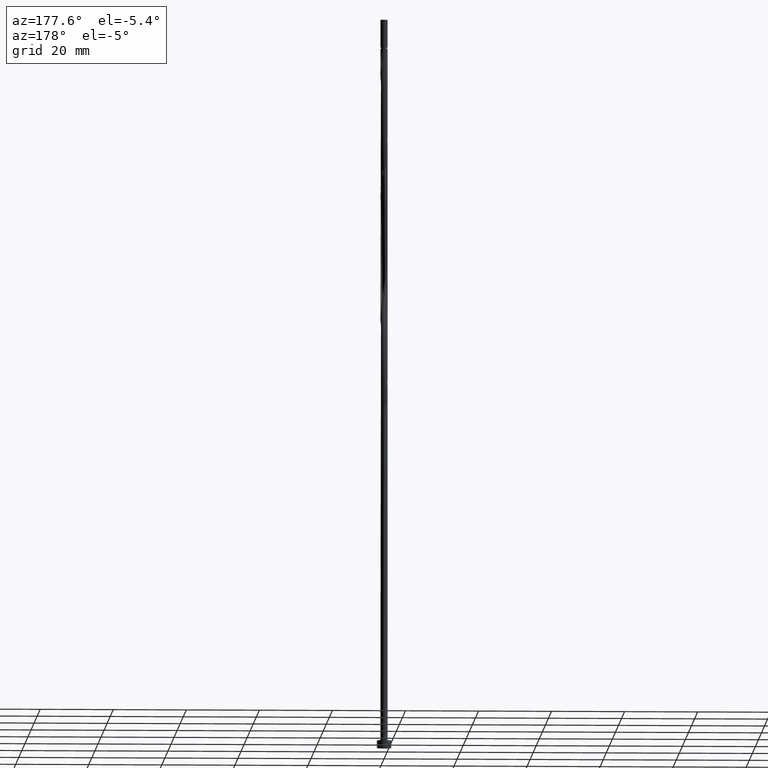
[diagram: clean part render]
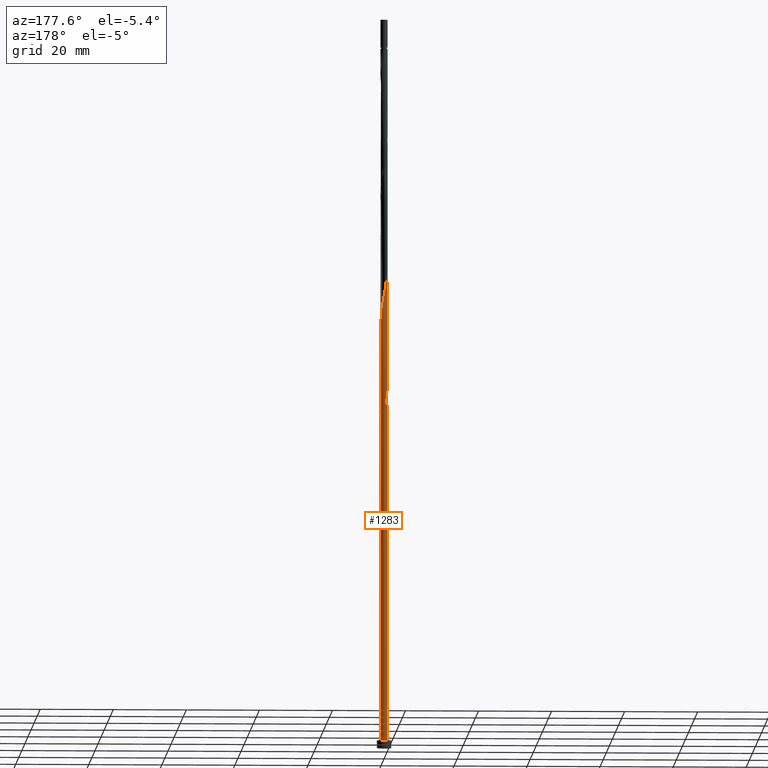
[diagram: same view with one face highlighted and labeled with its STEP entity id]
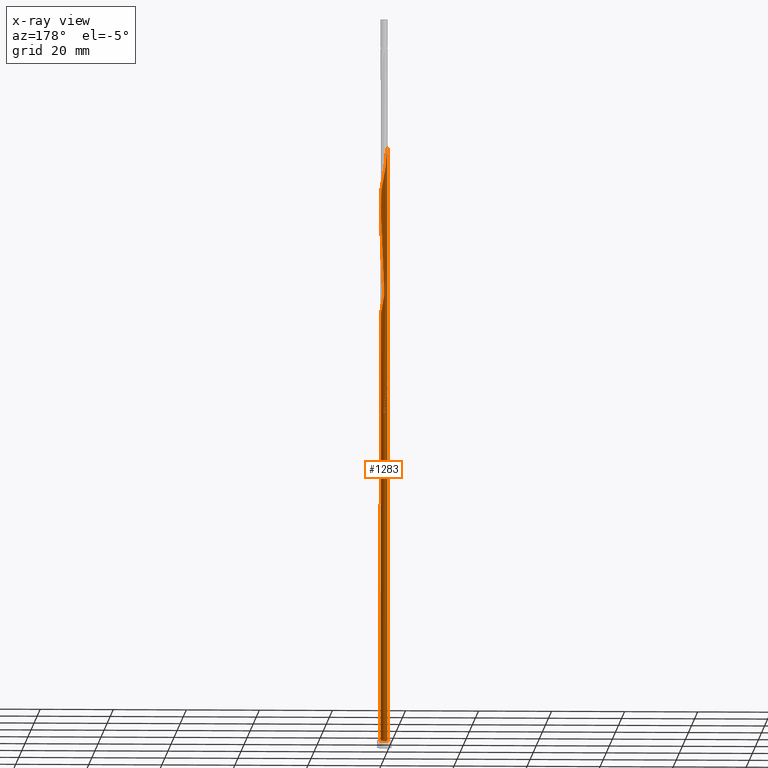
[diagram: x-ray of the same camera — body ghosted, the highlighted face saturated]
A machine part, auxiliary view. The second image highlights one B-rep face of the part: STEP entity #1283.
The next image is the same camera in x-ray: the body ghosted, the highlighted face saturated — about 0% of this face is hidden behind the body in this view.
In plain terms, the highlighted cylindrical surface (bore or boss wall) has radius 1 mm, axis along (-0, -0, -1).
Its self-contained STEP definition (entity closure, byte-faithful):
#9 = CARTESIAN_POINT ( 'NONE',  ( -0.5522521727681136694, -0.8336771183575211186, 137.8695350200416385 ) ) ;
#17 = CARTESIAN_POINT ( 'NONE',  ( 0.06997803978567683492, -1.006198516232634566, 141.3417572422638955 ) ) ;
#26 = CARTESIAN_POINT ( 'NONE',  ( -0.3176631206038585398, 0.9482036394194137685, 94.81397946448610980 ) ) ;
#59 = CARTESIAN_POINT ( 'NONE',  ( 0.000000000000000000, 0.000000000000000000, 2.000000000000000000 ) ) ;
#63 = CARTESIAN_POINT ( 'NONE',  ( -0.06142585173357875683, -0.9981116494354761448, 107.3139794644861240 ) ) ;
#67 = CARTESIAN_POINT ( 'NONE',  ( -1.000000000000001110, 1.147702956047795774E-15, 99.30596836483157119 ) ) ;
#83 = CARTESIAN_POINT ( 'NONE',  ( -0.1989974874213250866, 0.9800000000000013145, 92.03620168670833834 ) ) ;
#92 = CARTESIAN_POINT ( 'NONE',  ( 0.000000000000000000, 0.000000000000000000, 2.000000000000000000 ) ) ;
#99 = CARTESIAN_POINT ( 'NONE',  ( 0.9800000000000015365, 0.1989974874213251421, 117.0362016867083383 ) ) ;
#106 = ORIENTED_EDGE ( 'NONE', *, *, #978, .F. ) ;
#107 = CARTESIAN_POINT ( 'NONE',  ( -0.1989974874213250866, 0.9800000000000013145, 92.03620168670833834 ) ) ;
#116 = ORIENTED_EDGE ( 'NONE', *, *, #920, .F. ) ;
#119 = CARTESIAN_POINT ( 'NONE',  ( -0.1989974874213250866, 0.9800000000000015365, 158.7028683533749529 ) ) ;
#130 = CARTESIAN_POINT ( 'NONE',  ( -0.3176631206038588728, -0.9482036394194134354, 139.2584239089305242 ) ) ;
#133 = CIRCLE ( 'NONE', #491, 1.000000000000000000 ) ;
#140 = CARTESIAN_POINT ( 'NONE',  ( 0.7609717405145327573, -0.6620078475813443442, 145.5084239089305527 ) ) ;
#148 = DIRECTION ( 'NONE',  ( 0.000000000000000000, -0.000000000000000000, -1.000000000000000000 ) ) ;
#165 = CARTESIAN_POINT ( 'NONE',  ( -0.06142585173357854172, 0.9981116494354765889, 93.42509057559722407 ) ) ;
#169 = EDGE_CURVE ( 'NONE', #656, #1226, #937, .T. ) ;
#173 = CARTESIAN_POINT ( 'NONE',  ( -1.000000000000001332, 0.1005037815259229861, 100.8996753060624343 ) ) ;
#187 = DIRECTION ( 'NONE',  ( -0.000000000000000000, -0.000000000000000000, -1.000000000000000000 ) ) ;
#189 = CARTESIAN_POINT ( 'NONE',  ( -0.3176631206038588728, -0.9482036394194134354, 105.9250905755972525 ) ) ;
#193 = DIRECTION ( 'NONE',  ( -0.000000000000000000, -0.000000000000000000, -1.000000000000000000 ) ) ;
#195 = CARTESIAN_POINT ( 'NONE',  ( 0.9482036394194134354, -0.3176631206038589839, 114.2584239089305669 ) ) ;
#205 = CARTESIAN_POINT ( 'NONE',  ( -0.8951029700910997366, -0.4458594766673626419, 135.0917572422639239 ) ) ;
#212 = CARTESIAN_POINT ( 'NONE',  ( 0.06997803978567683492, -1.006198516232634566, 108.0084239089305527 ) ) ;
#219 = CARTESIAN_POINT ( 'NONE',  ( -0.9981116494354761448, 0.06142585173357871520, 132.3139794644861240 ) ) ;
#225 = ORIENTED_EDGE ( 'NONE', *, *, #680, .F. ) ;
#228 = EDGE_CURVE ( 'NONE', #1226, #1056, #806, .T. ) ;
#235 = CARTESIAN_POINT ( 'NONE',  ( 0.8364044564148324090, 0.5637020182777515709, 152.4528683533749813 ) ) ;
#244 = CARTESIAN_POINT ( 'NONE',  ( -0.8336771183575212296, 0.5522521727681136694, 162.8695350200416669 ) ) ;
#250 = CARTESIAN_POINT ( 'NONE',  ( -0.6620078475813443442, -0.7609717405145327573, 137.1750905755972099 ) ) ;
#260 = CARTESIAN_POINT ( 'NONE',  ( -0.9900247826383173910, 0.1928297432528343069, 164.9528683533750097 ) ) ;
#281 = CIRCLE ( 'NONE', #1337, 1.000000000000000000 ) ;
#283 =( BOUNDED_CURVE ( )  B_SPLINE_CURVE ( 2, ( #311, #676, #456, #345, #964, #1464, #709, #820, #1114, #1343, #189, #1095, #63, #212, #1566, #1457, #1481, #1350, #579, #972, #1087, #473, #195, #1603, #684, #329, #99, #1203, #1584, #447, #701, #550, #1321, #1219, #1575, #956, #1103, #1593, #1474, #338, #588, #319, #850, #831, #1211, #1198, #1078, #441, #219, #979, #949, #1336, #205, #693, #566, #250, #9, #596, #130, #1009, #883, #17, #727, #613, #1248, #717, #1130, #140, #877, #1514, #750, #1267, #1369, #1488, #1379, #1387, #761, #235, #1523, #1257, #620, #384, #1148, #1140, #893, #514, #119, #1630, #603, #1237, #1620, #506, #244, #1399, #1019, #260, #489, #355, #740 ),
 .UNSPECIFIED., .F., .T. ) 
 B_SPLINE_CURVE_WITH_KNOTS ( ( 3, 2, 2, 2, 2, 2, 2, 2, 2, 2, 2, 2, 2, 2, 2, 2, 2, 2, 2, 2, 2, 2, 2, 2, 2, 2, 2, 2, 2, 2, 2, 2, 2, 2, 2, 2, 2, 2, 2, 2, 2, 2, 2, 2, 2, 2, 2, 2, 2, 3 ),
 ( 0.05453176698144596851, 0.06250000000000000000, 0.07291666666666662966, 0.08333333333333337034, 0.09375000000000000000, 0.1041666666666666297, 0.1145833333333333703, 0.1250000000000000000, 0.1354166666666666297, 0.1458333333333333703, 0.1562500000000000000, 0.1666666666666666297, 0.1770833333333333703, 0.1875000000000000000, 0.1979166666666666297, 0.2083333333333333703, 0.2187500000000000000, 0.2291666666666666297, 0.2395833333333333703, 0.2500000000000000000, 0.2604166666666666297, 0.2708333333333333703, 0.2812500000000000000, 0.2916666666666666297, 0.3020833333333333703, 0.3125000000000000000, 0.3229166666666666297, 0.3333333333333333703, 0.3437500000000000000, 0.3541666666666666297, 0.3645833333333333703, 0.3750000000000000000, 0.3854166666666666297, 0.3958333333333333703, 0.4062500000000000000, 0.4166666666666666297, 0.4270833333333333703, 0.4375000000000000000, 0.4479166666666666297, 0.4583333333333333703, 0.4687500000000000000, 0.4791666666666666297, 0.4895833333333333703, 0.5000000000000000000, 0.5104166666666667407, 0.5208333333333332593, 0.5312500000000000000, 0.5416666666666667407, 0.5520833333333332593, 0.5545317669814462391 ),
 .UNSPECIFIED. ) 
 CURVE ( )  GEOMETRIC_REPRESENTATION_ITEM ( )  RATIONAL_B_SPLINE_CURVE ( ( 0.9062941362546810264, 0.9031415850403846646, 0.9090909090909604640, 0.9013135103398787207, 0.9090909090909604640, 0.9013135103398787207, 0.9090909090909604640, 0.9013135103398787207, 0.9090909090909604640, 0.9013135103398787207, 0.9090909090909604640, 0.9013135103398787207, 0.9090909090909604640, 0.9013135103398787207, 0.9090909090909604640, 0.9013135103398787207, 0.9090909090909604640, 0.9013135103398787207, 0.9090909090909604640, 0.9013135103398787207, 0.9090909090909604640, 0.9013135103398787207, 0.9090909090909604640, 0.9013135103398787207, 0.9090909090909604640, 0.9013135103398787207, 0.9090909090909604640, 0.9013135103398787207, 0.9090909090909604640, 0.9013135103398787207, 0.9090909090909604640, 0.9013135103398787207, 0.9090909090909604640, 0.9013135103398787207, 0.9090909090909604640, 0.9013135103398787207, 0.9090909090909604640, 0.9013135103398787207, 0.9090909090909604640, 0.9013135103398787207, 0.9090909090909604640, 0.9013135103398787207, 0.9090909090909604640, 0.9013135103398787207, 0.9090909090909604640, 0.9013135103398787207, 0.9090909090909604640, 0.9013135103398787207, 0.9090909090909604640, 0.9013135103398787207, 0.9090909090909604640, 0.9013135103398787207, 0.9090909090909604640, 0.9013135103398787207, 0.9090909090909604640, 0.9013135103398787207, 0.9090909090909604640, 0.9013135103398787207, 0.9090909090909604640, 0.9013135103398787207, 0.9090909090909604640, 0.9013135103398787207, 0.9090909090909604640, 0.9013135103398787207, 0.9090909090909604640, 0.9013135103398787207, 0.9090909090909604640, 0.9013135103398787207, 0.9090909090909604640, 0.9013135103398787207, 0.9090909090909604640, 0.9013135103398787207, 0.9090909090909604640, 0.9013135103398787207, 0.9090909090909604640, 0.9013135103398787207, 0.9090909090909604640, 0.9013135103398787207, 0.9090909090909604640, 0.9013135103398787207, 0.9090909090909604640, 0.9013135103398787207, 0.9090909090909604640, 0.9013135103398787207, 0.9090909090909604640, 0.9013135103398787207, 0.9090909090909604640, 0.9013135103398787207, 0.9090909090909604640, 0.9013135103398787207, 0.9090909090909604640, 0.9013135103398787207, 0.9090909090909604640, 0.9013135103398787207, 0.9090909090909604640, 0.9013135103398787207, 0.9090909090909604640, 0.9072628343904541870, 0.9062941362546808044 ) ) 
 REPRESENTATION_ITEM ( '' )  );
#311 = CARTESIAN_POINT ( 'NONE',  ( -1.000000000000001110, 1.147702956047795774E-15, 99.30596836483157119 ) ) ;
#319 = CARTESIAN_POINT ( 'NONE',  ( -0.5637020182777521260, 0.8364044564148319649, 127.4528683533749671 ) ) ;
#329 = CARTESIAN_POINT ( 'NONE',  ( 1.006198516232634566, 0.06997803978567632144, 116.3417572422638671 ) ) ;
#338 = CARTESIAN_POINT ( 'NONE',  ( -0.3280169350569732689, 0.9538014837673669533, 126.0639794644860814 ) ) ;
#345 = CARTESIAN_POINT ( 'NONE',  ( -0.9538014837673672863, -0.3280169350569731024, 101.0639794644860956 ) ) ;
#355 = CARTESIAN_POINT ( 'NONE',  ( -1.000000000000001110, 0.03074195165767253449, 165.8094713434700793 ) ) ;
#363 = CARTESIAN_POINT ( 'NONE',  ( -0.7609717405145329794, 0.6620078475813443442, 95.50842390893055267 ) ) ;
#384 = CARTESIAN_POINT ( 'NONE',  ( 0.4424964979548831057, 0.9063824962005089247, 155.2306461311527244 ) ) ;
#393 = CARTESIAN_POINT ( 'NONE',  ( -0.9482036394194134354, 0.3176631206038587618, 97.59175724226389548 ) ) ;
#436 = DIRECTION ( 'NONE',  ( 1.000000000000000000, 0.000000000000000000, 0.000000000000000000 ) ) ;
#441 = CARTESIAN_POINT ( 'NONE',  ( -0.9900247826383173910, 0.1928297432528343069, 131.6195350200416385 ) ) ;
#447 = CARTESIAN_POINT ( 'NONE',  ( 0.8364044564148324090, 0.5637020182777515709, 119.1195350200416385 ) ) ;
#454 = EDGE_LOOP ( 'NONE', ( #838, #116, #715, #1394, #487, #537, #106, #683, #225 ) ) ;
#456 = CARTESIAN_POINT ( 'NONE',  ( -0.9800000000000015365, -0.1989974874213253087, 100.3695350200416527 ) ) ;
#465 = CARTESIAN_POINT ( 'NONE',  ( -1.000000000000001110, 8.598426055081204793E-17, 165.9726350314982426 ) ) ;
#468 = DIRECTION ( 'NONE',  ( 0.000000000000000000, 0.000000000000000000, 1.000000000000000000 ) ) ;
#473 = CARTESIAN_POINT ( 'NONE',  ( 0.9063824962005089247, -0.4424964979548830502, 113.5639794644860530 ) ) ;
#480 = CARTESIAN_POINT ( 'NONE',  ( -0.4458594766673627530, 0.8951029700910997366, 93.42509057559723828 ) ) ;
#487 = ORIENTED_EDGE ( 'NONE', *, *, #1294, .T. ) ;
#489 = CARTESIAN_POINT ( 'NONE',  ( -0.9981116494354761448, 0.06142585173357871520, 165.6473127978194384 ) ) ;
#491 = AXIS2_PLACEMENT_3D ( 'NONE', #59, #547, #436 ) ;
#497 = DIRECTION ( 'NONE',  ( -1.000000000000000000, 0.000000000000000000, 0.000000000000000000 ) ) ;
#506 = CARTESIAN_POINT ( 'NONE',  ( -0.7609717405145329794, 0.6620078475813443442, 162.1750905755972383 ) ) ;
#514 = CARTESIAN_POINT ( 'NONE',  ( -0.06997803978567623817, 1.006198516232634566, 158.0084239089304958 ) ) ;
#533 = CARTESIAN_POINT ( 'NONE',  ( -0.6620078475813443442, 0.7609717405145332014, 96.89731279781943840 ) ) ;
#537 = ORIENTED_EDGE ( 'NONE', *, *, #169, .F. ) ;
#547 = DIRECTION ( 'NONE',  ( 0.000000000000000000, 0.000000000000000000, 1.000000000000000000 ) ) ;
#550 = CARTESIAN_POINT ( 'NONE',  ( 0.6620078475813448993, 0.7609717405145322022, 120.5084239089305385 ) ) ;
#566 = CARTESIAN_POINT ( 'NONE',  ( -0.7492061519980882656, -0.6623368793961422751, 136.4806461311527528 ) ) ;
#579 = CARTESIAN_POINT ( 'NONE',  ( 0.6623368793961422751, -0.7492061519980883766, 111.4806461311527670 ) ) ;
#588 = CARTESIAN_POINT ( 'NONE',  ( -0.4458594766673627530, 0.8951029700910997366, 126.7584239089305669 ) ) ;
#596 = CARTESIAN_POINT ( 'NONE',  ( -0.4424964979548830502, -0.9063824962005091468, 138.5639794644861240 ) ) ;
#603 = CARTESIAN_POINT ( 'NONE',  ( -0.4458594766673627530, 0.8951029700910997366, 160.0917572422639239 ) ) ;
#613 = CARTESIAN_POINT ( 'NONE',  ( 0.3280169350569731024, -0.9538014837673672863, 142.7306461311527528 ) ) ;
#620 = CARTESIAN_POINT ( 'NONE',  ( 0.5522521727681136694, 0.8336771183575210076, 154.5362016867083526 ) ) ;
#645 = CARTESIAN_POINT ( 'NONE',  ( 0.06997803978567723737, 1.006198516232635232, 92.73064613115279542 ) ) ;
#656 = VERTEX_POINT ( 'NONE', #1427 ) ;
#657 = CARTESIAN_POINT ( 'NONE',  ( -1.000000000000001332, -8.448888210644999734E-16, 101.4331016752517201 ) ) ;
#672 = CARTESIAN_POINT ( 'NONE',  ( -0.8336771183575212296, 0.5522521727681136694, 96.20286835337502396 ) ) ;
#676 = CARTESIAN_POINT ( 'NONE',  ( -1.000000000000001998, -0.1005037815259179068, 99.83939473402082854 ) ) ;
#680 = EDGE_CURVE ( 'NONE', #1245, #954, #1455, .T. ) ;
#683 = ORIENTED_EDGE ( 'NONE', *, *, #923, .T. ) ;
#684 = CARTESIAN_POINT ( 'NONE',  ( 0.9981116494354761448, -0.06142585173357926337, 115.6473127978194668 ) ) ;
#693 = CARTESIAN_POINT ( 'NONE',  ( -0.8364044564148321870, -0.5637020182777517929, 135.7862016867082673 ) ) ;
#701 = CARTESIAN_POINT ( 'NONE',  ( 0.7492061519980887097, 0.6623368793961419421, 119.8139794644861240 ) ) ;
#709 = CARTESIAN_POINT ( 'NONE',  ( -0.7492061519980882656, -0.6623368793961422751, 103.1473127978194526 ) ) ;
#715 = ORIENTED_EDGE ( 'NONE', *, *, #169, .T. ) ;
#717 = CARTESIAN_POINT ( 'NONE',  ( 0.5637020182777515709, -0.8364044564148324090, 144.1195350200416101 ) ) ;
#727 = CARTESIAN_POINT ( 'NONE',  ( 0.1989974874213252254, -0.9800000000000015365, 142.0362016867083526 ) ) ;
#740 = CARTESIAN_POINT ( 'NONE',  ( -1.000000000000001110, 8.598426055081204793E-17, 165.9726350314982426 ) ) ;
#750 = CARTESIAN_POINT ( 'NONE',  ( 0.9482036394194134354, -0.3176631206038589839, 147.5917572422638955 ) ) ;
#761 = CARTESIAN_POINT ( 'NONE',  ( 0.8951029700910999587, 0.4458594766673623089, 151.7584239089306095 ) ) ;
#773 = CARTESIAN_POINT ( 'NONE',  ( -1.000000000000000666, 0.03074195165767700660, 99.14280467680343634 ) ) ;
#778 = CARTESIAN_POINT ( 'NONE',  ( -0.9063824962005091468, 0.4424964979548827726, 96.89731279781942419 ) ) ;
#790 = CARTESIAN_POINT ( 'NONE',  ( -0.8951029700910995146, 0.4458594766673630305, 98.98064613115279542 ) ) ;
#806 = CIRCLE ( 'NONE', #1565, 1.000000000000000000 ) ;
#808 = CARTESIAN_POINT ( 'NONE',  ( -0.9900247826383173910, 0.1928297432528343069, 98.28620168670833834 ) ) ;
#811 = CARTESIAN_POINT ( 'NONE',  ( -0.5522521727681137804, 0.8336771183575213406, 96.20286835337500975 ) ) ;
#820 = CARTESIAN_POINT ( 'NONE',  ( -0.6620078475813443442, -0.7609717405145327573, 103.8417572422638671 ) ) ;
#824 = VERTEX_POINT ( 'NONE', #83 ) ;
#831 = CARTESIAN_POINT ( 'NONE',  ( -0.7609717405145329794, 0.6620078475813443442, 128.8417572422638671 ) ) ;
#834 = DIRECTION ( 'NONE',  ( 1.000000000000000000, 0.000000000000000000, 0.000000000000000000 ) ) ;
#838 = ORIENTED_EDGE ( 'NONE', *, *, #1073, .F. ) ;
#850 = CARTESIAN_POINT ( 'NONE',  ( -0.6623368793961424972, 0.7492061519980882656, 128.1473127978194384 ) ) ;
#875 = VERTEX_POINT ( 'NONE', #465 ) ;
#877 = CARTESIAN_POINT ( 'NONE',  ( 0.8336771183575207855, -0.5522521727681138914, 146.2028683533750666 ) ) ;
#883 = CARTESIAN_POINT ( 'NONE',  ( -0.06142585173357875683, -0.9981116494354761448, 140.6473127978194384 ) ) ;
#893 = CARTESIAN_POINT ( 'NONE',  ( 0.06142585173357931194, 0.9981116494354761448, 157.3139794644860956 ) ) ;
#908 = CARTESIAN_POINT ( 'NONE',  ( -0.9981116494354761448, 0.06142585173357871520, 98.98064613115278121 ) ) ;
#920 = EDGE_CURVE ( 'NONE', #656, #875, #283, .T. ) ;
#923 = EDGE_CURVE ( 'NONE', #824, #954, #281, .T. ) ;
#937 = LINE ( 'NONE', #1192, #1106 ) ;
#938 = CARTESIAN_POINT ( 'NONE',  ( 1.000000000000000000, 0.000000000000000000, 2.000000000000000000 ) ) ;
#949 = CARTESIAN_POINT ( 'NONE',  ( -0.9800000000000015365, -0.1989974874213253087, 133.7028683533750097 ) ) ;
#954 = VERTEX_POINT ( 'NONE', #1156 ) ;
#956 = CARTESIAN_POINT ( 'NONE',  ( 0.1928297432528348621, 0.9900247826383173910, 123.2862016867083099 ) ) ;
#964 = CARTESIAN_POINT ( 'NONE',  ( -0.8951029700910997366, -0.4458594766673626419, 101.7584239089305527 ) ) ;
#972 = CARTESIAN_POINT ( 'NONE',  ( 0.7609717405145327573, -0.6620078475813443442, 112.1750905755971814 ) ) ;
#978 = EDGE_CURVE ( 'NONE', #824, #656, #1622, .T. ) ;
#979 = CARTESIAN_POINT ( 'NONE',  ( -1.006198516232634566, -0.06997803978567711247, 133.0084239089304958 ) ) ;
#988 = CARTESIAN_POINT ( 'NONE',  ( -0.5637020182777521260, 0.8364044564148319649, 94.11953502004165273 ) ) ;
#1009 = CARTESIAN_POINT ( 'NONE',  ( -0.1928297432528343625, -0.9900247826383176131, 139.9528683533749813 ) ) ;
#1019 = CARTESIAN_POINT ( 'NONE',  ( -0.9482036394194134354, 0.3176631206038587618, 164.2584239089305527 ) ) ;
#1056 = VERTEX_POINT ( 'NONE', #938 ) ;
#1069 = CARTESIAN_POINT ( 'NONE',  ( -0.9538014837673675084, 0.3280169350569736020, 99.67509057559720986 ) ) ;
#1073 = EDGE_CURVE ( 'NONE', #875, #1245, #1082, .T. ) ;
#1074 = FACE_OUTER_BOUND ( 'NONE', #454, .T. ) ;
#1078 = CARTESIAN_POINT ( 'NONE',  ( -0.9482036394194134354, 0.3176631206038587618, 130.9250905755972383 ) ) ;
#1082 = LINE ( 'NONE', #1436, #1492 ) ;
#1087 = CARTESIAN_POINT ( 'NONE',  ( 0.8336771183575207855, -0.5522521727681138914, 112.8695350200416669 ) ) ;
#1092 = DIRECTION ( 'NONE',  ( -1.000000000000000000, 0.000000000000000000, 0.000000000000000000 ) ) ;
#1095 = CARTESIAN_POINT ( 'NONE',  ( -0.1928297432528343625, -0.9900247826383176131, 106.6195350200416527 ) ) ;
#1103 = CARTESIAN_POINT ( 'NONE',  ( 0.06142585173357931194, 0.9981116494354761448, 123.9806461311527954 ) ) ;
#1106 = VECTOR ( 'NONE', #1297, 1000.000000000000000 ) ;
#1114 = CARTESIAN_POINT ( 'NONE',  ( -0.5522521727681136694, -0.8336771183575211186, 104.5362016867083383 ) ) ;
#1130 = CARTESIAN_POINT ( 'NONE',  ( 0.6623368793961422751, -0.7492061519980883766, 144.8139794644861524 ) ) ;
#1140 = CARTESIAN_POINT ( 'NONE',  ( 0.1928297432528348621, 0.9900247826383173910, 156.6195350200416101 ) ) ;
#1148 = CARTESIAN_POINT ( 'NONE',  ( 0.3176631206038589839, 0.9482036394194134354, 155.9250905755972099 ) ) ;
#1156 = CARTESIAN_POINT ( 'NONE',  ( 0.1989974874213255862, 0.9800000000000013145, 92.03620168670833834 ) ) ;
#1163 = AXIS2_PLACEMENT_3D ( 'NONE', #1194, #193, #1092 ) ;
#1184 = CARTESIAN_POINT ( 'NONE',  ( -0.1928297432528343625, 0.9900247826383178351, 94.11953502004166694 ) ) ;
#1192 = CARTESIAN_POINT ( 'NONE',  ( -1.000000000000000000, 0.000000000000000000, 200.0000000000000000 ) ) ;
#1194 = CARTESIAN_POINT ( 'NONE',  ( 0.000000000000000000, 0.000000000000000000, 200.0000000000000000 ) ) ;
#1198 = CARTESIAN_POINT ( 'NONE',  ( -0.9063824962005091468, 0.4424964979548827726, 130.2306461311527528 ) ) ;
#1203 = CARTESIAN_POINT ( 'NONE',  ( 0.9538014837673672863, 0.3280169350569731024, 117.7306461311527670 ) ) ;
#1211 = CARTESIAN_POINT ( 'NONE',  ( -0.8336771183575212296, 0.5522521727681136694, 129.5362016867083526 ) ) ;
#1219 = CARTESIAN_POINT ( 'NONE',  ( 0.4424964979548831057, 0.9063824962005089247, 121.8973127978194242 ) ) ;
#1226 = VERTEX_POINT ( 'NONE', #1559 ) ;
#1237 = CARTESIAN_POINT ( 'NONE',  ( -0.5637020182777521260, 0.8364044564148319649, 160.7862016867082957 ) ) ;
#1245 = VERTEX_POINT ( 'NONE', #1315 ) ;
#1248 = CARTESIAN_POINT ( 'NONE',  ( 0.4458594766673625309, -0.8951029700910999587, 143.4250905755972099 ) ) ;
#1257 = CARTESIAN_POINT ( 'NONE',  ( 0.6620078475813448993, 0.7609717405145322022, 153.8417572422638671 ) ) ;
#1267 = CARTESIAN_POINT ( 'NONE',  ( 0.9900247826383173910, -0.1928297432528348065, 148.2862016867082957 ) ) ;
#1273 = CARTESIAN_POINT ( 'NONE',  ( 0.000000000000000000, 0.000000000000000000, 92.03620168670833834 ) ) ;
#1283 = ADVANCED_FACE ( 'NONE', ( #1074 ), #1454, .T. ) ;
#1291 = CARTESIAN_POINT ( 'NONE',  ( -0.9800000000000013145, 0.1989974874213254474, 100.3695350200416669 ) ) ;
#1294 = EDGE_CURVE ( 'NONE', #1056, #1226, #133, .T. ) ;
#1295 = CARTESIAN_POINT ( 'NONE',  ( 0.1989974874213255862, 0.9800000000000013145, 92.03620168670835255 ) ) ;
#1297 = DIRECTION ( 'NONE',  ( -0.000000000000000000, -0.000000000000000000, -1.000000000000000000 ) ) ;
#1315 = CARTESIAN_POINT ( 'NONE',  ( -1.000000000000001332, -8.448888210644999734E-16, 101.4331016752517343 ) ) ;
#1321 = CARTESIAN_POINT ( 'NONE',  ( 0.5522521727681136694, 0.8336771183575210076, 121.2028683533750097 ) ) ;
#1336 = CARTESIAN_POINT ( 'NONE',  ( -0.9538014837673672863, -0.3280169350569731024, 134.3973127978194384 ) ) ;
#1337 = AXIS2_PLACEMENT_3D ( 'NONE', #1273, #148, #497 ) ;
#1343 = CARTESIAN_POINT ( 'NONE',  ( -0.4424964979548830502, -0.9063824962005091468, 105.2306461311527670 ) ) ;
#1350 = CARTESIAN_POINT ( 'NONE',  ( 0.5637020182777515709, -0.8364044564148324090, 110.7862016867083241 ) ) ;
#1369 = CARTESIAN_POINT ( 'NONE',  ( 0.9981116494354761448, -0.06142585173357926337, 148.9806461311528096 ) ) ;
#1379 = CARTESIAN_POINT ( 'NONE',  ( 0.9800000000000015365, 0.1989974874213251421, 150.3695350200417522 ) ) ;
#1387 = CARTESIAN_POINT ( 'NONE',  ( 0.9538014837673672863, 0.3280169350569731024, 151.0639794644860956 ) ) ;
#1394 = ORIENTED_EDGE ( 'NONE', *, *, #228, .T. ) ;
#1399 = CARTESIAN_POINT ( 'NONE',  ( -0.9063824962005091468, 0.4424964979548827726, 163.5639794644860672 ) ) ;
#1413 = CARTESIAN_POINT ( 'NONE',  ( -0.7492061519980883766, 0.6623368793961428302, 97.59175724226389548 ) ) ;
#1427 = CARTESIAN_POINT ( 'NONE',  ( -1.000000000000001110, 1.147702956047795774E-15, 99.30596836483157119 ) ) ;
#1436 = CARTESIAN_POINT ( 'NONE',  ( -1.000000000000000000, 0.000000000000000000, 200.0000000000000000 ) ) ;
#1454 = CYLINDRICAL_SURFACE ( 'NONE', #1163, 1.000000000000000000 ) ;
#1455 =( BOUNDED_CURVE ( )  B_SPLINE_CURVE ( 2, ( #657, #173, #1291, #1069, #790, #1547, #1413, #533, #811, #1537, #26, #1184, #165, #645, #1295 ),
 .UNSPECIFIED., .F., .T. ) 
 B_SPLINE_CURVE_WITH_KNOTS ( ( 3, 2, 2, 2, 2, 2, 2, 3 ),
 ( 0.9295317669814463502, 0.9375000000000000000, 0.9479166666666666297, 0.9583333333333333703, 0.9687500000000000000, 0.9791666666666666297, 0.9895833333333333703, 1.000000000000000000 ),
 .UNSPECIFIED. ) 
 CURVE ( )  GEOMETRIC_REPRESENTATION_ITEM ( )  RATIONAL_B_SPLINE_CURVE ( ( 0.9062941362546818036, 0.9031415850403861079, 0.9090909090909616852, 0.9013135103398798309, 0.9090909090909616852, 0.9013135103398798309, 0.9090909090909616852, 0.9013135103398798309, 0.9090909090909616852, 0.9013135103398798309, 0.9090909090909616852, 0.9013135103398798309, 0.9090909090909616852, 0.9013135103398798309, 0.9090909090909616852 ) ) 
 REPRESENTATION_ITEM ( '' )  );
#1457 = CARTESIAN_POINT ( 'NONE',  ( 0.3280169350569731024, -0.9538014837673672863, 109.3973127978194242 ) ) ;
#1464 = CARTESIAN_POINT ( 'NONE',  ( -0.8364044564148321870, -0.5637020182777517929, 102.4528683533749955 ) ) ;
#1474 = CARTESIAN_POINT ( 'NONE',  ( -0.1989974874213250866, 0.9800000000000015365, 125.3695350200416669 ) ) ;
#1481 = CARTESIAN_POINT ( 'NONE',  ( 0.4458594766673625309, -0.8951029700910999587, 110.0917572422639097 ) ) ;
#1488 = CARTESIAN_POINT ( 'NONE',  ( 1.006198516232634566, 0.06997803978567632144, 149.6750905755972383 ) ) ;
#1492 = VECTOR ( 'NONE', #187, 1000.000000000000000 ) ;
#1495 = CARTESIAN_POINT ( 'NONE',  ( -0.6623368793961424972, 0.7492061519980882656, 94.81397946448612402 ) ) ;
#1514 = CARTESIAN_POINT ( 'NONE',  ( 0.9063824962005089247, -0.4424964979548830502, 146.8973127978194100 ) ) ;
#1523 = CARTESIAN_POINT ( 'NONE',  ( 0.7492061519980887097, 0.6623368793961419421, 153.1473127978194384 ) ) ;
#1537 = CARTESIAN_POINT ( 'NONE',  ( -0.4424964979548827726, 0.9063824962005097019, 95.50842390893055267 ) ) ;
#1547 = CARTESIAN_POINT ( 'NONE',  ( -0.8364044564148325200, 0.5637020182777524591, 98.28620168670835255 ) ) ;
#1559 = CARTESIAN_POINT ( 'NONE',  ( -1.000000000000000000, 0.000000000000000000, 2.000000000000000000 ) ) ;
#1565 = AXIS2_PLACEMENT_3D ( 'NONE', #92, #468, #834 ) ;
#1566 = CARTESIAN_POINT ( 'NONE',  ( 0.1989974874213252254, -0.9800000000000015365, 108.7028683533749955 ) ) ;
#1575 = CARTESIAN_POINT ( 'NONE',  ( 0.3176631206038589839, 0.9482036394194134354, 122.5917572422638813 ) ) ;
#1584 = CARTESIAN_POINT ( 'NONE',  ( 0.8951029700910999587, 0.4458594766673623089, 118.4250905755972525 ) ) ;
#1593 = CARTESIAN_POINT ( 'NONE',  ( -0.06997803978567623817, 1.006198516232634566, 124.6750905755971957 ) ) ;
#1603 = CARTESIAN_POINT ( 'NONE',  ( 0.9900247826383173910, -0.1928297432528348065, 114.9528683533749813 ) ) ;
#1610 = CARTESIAN_POINT ( 'NONE',  ( -0.3280169350569732689, 0.9538014837673669533, 92.73064613115275279 ) ) ;
#1620 = CARTESIAN_POINT ( 'NONE',  ( -0.6623368793961424972, 0.7492061519980882656, 161.4806461311528381 ) ) ;
#1622 =( BOUNDED_CURVE ( )  B_SPLINE_CURVE ( 2, ( #107, #1610, #480, #988, #1495, #363, #672, #778, #393, #808, #908, #773, #67 ),
 .UNSPECIFIED., .F., .T. ) 
 B_SPLINE_CURVE_WITH_KNOTS ( ( 3, 2, 2, 2, 2, 2, 3 ),
 ( 0.000000000000000000, 0.01041666666666662966, 0.02083333333333337034, 0.03125000000000000000, 0.04166666666666662966, 0.05208333333333337034, 0.05453176698144597545 ),
 .UNSPECIFIED. ) 
 CURVE ( )  GEOMETRIC_REPRESENTATION_ITEM ( )  RATIONAL_B_SPLINE_CURVE ( ( 0.9090909090909604640, 0.9013135103398787207, 0.9090909090909604640, 0.9013135103398787207, 0.9090909090909604640, 0.9013135103398787207, 0.9090909090909604640, 0.9013135103398787207, 0.9090909090909604640, 0.9013135103398787207, 0.9090909090909604640, 0.9072628343904544090, 0.9062941362546810264 ) ) 
 REPRESENTATION_ITEM ( '' )  );
#1630 = CARTESIAN_POINT ( 'NONE',  ( -0.3280169350569732689, 0.9538014837673669533, 159.3973127978194100 ) ) ;